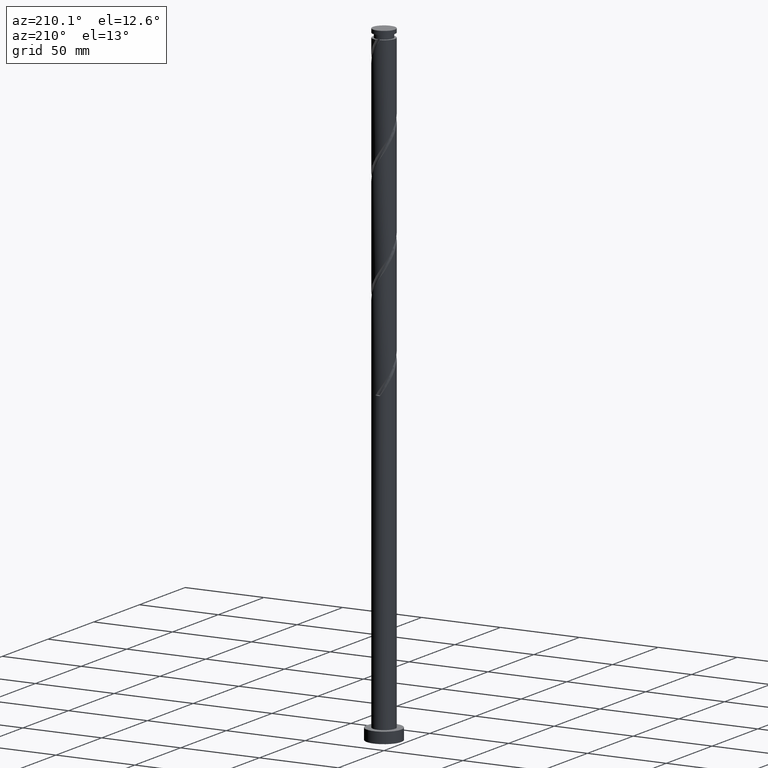
[diagram: clean part render]
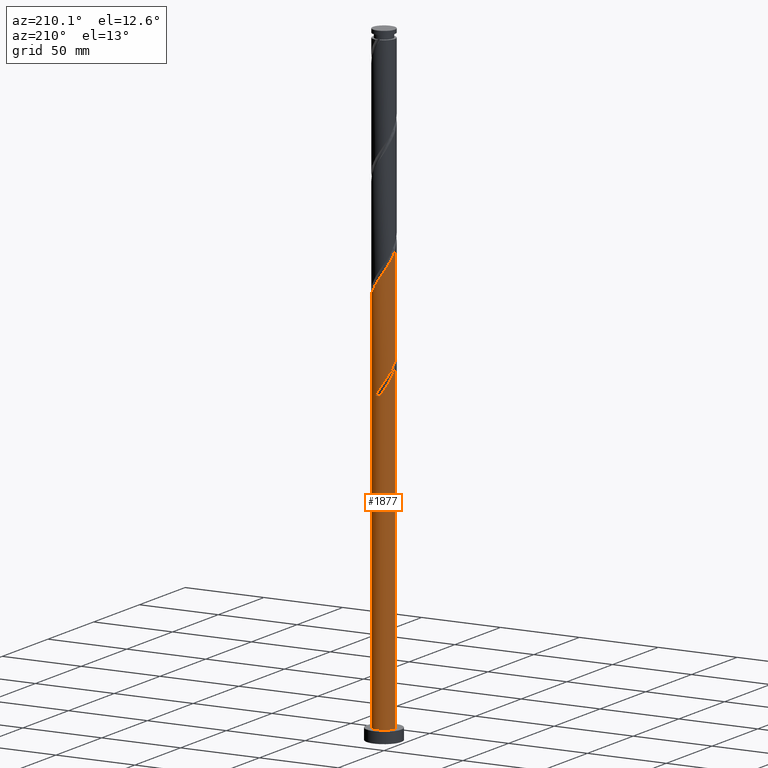
[diagram: same view with one face highlighted and labeled with its STEP entity id]
A machine part, auxiliary view. The second image highlights one B-rep face of the part: STEP entity #1877.
In plain terms, the highlighted cylindrical surface (edge-blend (fillet) strip) has radius 7 mm, axis along (-0, -0, -1).
Its self-contained STEP definition (entity closure, byte-faithful):
#21 = DIRECTION ( 'NONE',  ( -0.000000000000000000, -0.000000000000000000, -1.000000000000000000 ) ) ;
#100 = CARTESIAN_POINT ( 'NONE',  ( -6.030060668729773532, 3.555048288200651108, 203.6551182665601516 ) ) ;
#110 = CARTESIAN_POINT ( 'NONE',  ( 0.06373179489726354952, 6.999709869581692168, 259.2106738221157229 ) ) ;
#120 = CARTESIAN_POINT ( 'NONE',  ( 3.574630488033866627, 6.063275928678099724, 253.6551182665601800 ) ) ;
#128 = CARTESIAN_POINT ( 'NONE',  ( 6.968026513106293507, 0.6682862505303511780, 243.6551182665601800 ) ) ;
#176 = EDGE_CURVE ( 'NONE', #1970, #1303, #280, .T. ) ;
#184 = CARTESIAN_POINT ( 'NONE',  ( -1.517660616487697567, 6.833498829528120488, 199.2106738221156945 ) ) ;
#225 = CARTESIAN_POINT ( 'NONE',  ( 7.000000000000000888, 8.572527594031474176E-16, 7.000000000000000000 ) ) ;
#240 = EDGE_CURVE ( 'NONE', #1842, #826, #785, .T. ) ;
#273 = CARTESIAN_POINT ( 'NONE',  ( -5.656410037065892737, 4.188833203393127924, 269.2106738221157798 ) ) ;
#280 = CIRCLE ( 'NONE', #912, 7.000000000000000888 ) ;
#282 = CARTESIAN_POINT ( 'NONE',  ( -6.954702939942492002, 0.7950515814432463912, 274.7662293776712659 ) ) ;
#289 = CARTESIAN_POINT ( 'NONE',  ( -2.113997465871814363, 6.713591648853544314, 262.5440071554490373 ) ) ;
#300 = EDGE_CURVE ( 'NONE', #1970, #604, #440, .T. ) ;
#325 = CARTESIAN_POINT ( 'NONE',  ( -6.093792463627023537, 3.444661581381034843, 208.0995627110046371 ) ) ;
#363 = EDGE_LOOP ( 'NONE', ( #847, #543, #1133, #1956, #1321, #871, #641, #1604 ) ) ;
#378 = FACE_OUTER_BOUND ( 'NONE', #363, .T. ) ;
#398 = CARTESIAN_POINT ( 'NONE',  ( 7.000000000000000888, 8.572527594031474176E-16, 400.0000000000000000 ) ) ;
#404 = CARTESIAN_POINT ( 'NONE',  ( -4.661896512651583002, 5.273330922538002064, 266.9884515998934944 ) ) ;
#410 = CARTESIAN_POINT ( 'NONE',  ( 2.235890285154152668, 6.673986271039353824, 255.8773404887823517 ) ) ;
#422 = CARTESIAN_POINT ( 'NONE',  ( -4.062766126512286746, 5.700344849328372376, 199.2106738221156945 ) ) ;
#432 = CARTESIAN_POINT ( 'NONE',  ( -5.159153274858738314, 4.731082062965566770, 268.0995627110045234 ) ) ;
#440 =( BOUNDED_CURVE ( )  B_SPLINE_CURVE ( 2, ( #1472, #571, #560, #1319, #422, #1177, #593, #1198, #100, #441, #1800, #1824, #1047, #1495, #1031 ),
 .UNSPECIFIED., .F., .T. ) 
 B_SPLINE_CURVE_WITH_KNOTS ( ( 3, 2, 2, 2, 2, 2, 2, 3 ),
 ( 0.000000000000000000, 0.008333333333333303727, 0.01666666666666671848, 0.02500000000000002220, 0.03333333333333332593, 0.04166666666666662966, 0.05000000000000004441, 0.05452860127731151002 ),
 .UNSPECIFIED. ) 
 CURVE ( )  GEOMETRIC_REPRESENTATION_ITEM ( )  RATIONAL_B_SPLINE_CURVE ( ( 0.9090909090909347068, 0.9041108139711830916, 0.9090909090909347068, 0.9041108139711830916, 0.9090909090909347068, 0.9041108139711830916, 0.9090909090909347068, 0.9041108139711830916, 0.9090909090909347068, 0.9041108139711830916, 0.9090909090909347068, 0.9041108139711830916, 0.9090909090909347068, 0.9063845652764819238, 0.9066196499552231503 ) ) 
 REPRESENTATION_ITEM ( '' )  );
#441 = CARTESIAN_POINT ( 'NONE',  ( -6.403711300393656991, 2.921263373008176067, 204.7662293776712659 ) ) ;
#449 = EDGE_CURVE ( 'NONE', #604, #1645, #1869, .T. ) ;
#453 = AXIS2_PLACEMENT_3D ( 'NONE', #1741, #1565, #1907 ) ;
#475 = CARTESIAN_POINT ( 'NONE',  ( 1.392982411949274191, 6.859999999999999432, 194.7662293776712374 ) ) ;
#508 = LINE ( 'NONE', #1297, #2014 ) ;
#519 = CARTESIAN_POINT ( 'NONE',  ( -0.7994309478212489051, 6.993011388016896035, 198.0995627110045803 ) ) ;
#543 = ORIENTED_EDGE ( 'NONE', *, *, #829, .T. ) ;
#560 = CARTESIAN_POINT ( 'NONE',  ( -2.788816603122402871, 6.420475212486143946, 196.9884515998935228 ) ) ;
#571 = CARTESIAN_POINT ( 'NONE',  ( -2.113997465871814363, 6.713591648853544314, 195.8773404887823233 ) ) ;
#572 = EDGE_CURVE ( 'NONE', #1003, #1303, #1107, .T. ) ;
#584 = CARTESIAN_POINT ( 'NONE',  ( -6.637425475935894603, 2.223641844227014719, 272.5440071554490942 ) ) ;
#593 = CARTESIAN_POINT ( 'NONE',  ( -5.159153274858738314, 4.731082062965566770, 201.4328960443379231 ) ) ;
#604 = VERTEX_POINT ( 'NONE', #941 ) ;
#633 = DIRECTION ( 'NONE',  ( 0.000000000000000000, 0.000000000000000000, 1.000000000000000000 ) ) ;
#638 = CARTESIAN_POINT ( 'NONE',  ( 1.392982411949274191, 6.859999999999999432, 194.7662293776712374 ) ) ;
#641 = ORIENTED_EDGE ( 'NONE', *, *, #572, .F. ) ;
#650 = CARTESIAN_POINT ( 'NONE',  ( -6.968026513106281961, 0.6682862505303576173, 212.5440071554490089 ) ) ;
#726 = CARTESIAN_POINT ( 'NONE',  ( -4.062766126512286746, 5.700344849328372376, 265.8773404887823517 ) ) ;
#780 = CARTESIAN_POINT ( 'NONE',  ( 0.6719673580267319091, 7.006408351146465208, 195.8773404887823517 ) ) ;
#785 =( BOUNDED_CURVE ( )  B_SPLINE_CURVE ( 2, ( #954, #1577, #128, #1161, #1485, #1812, #868, #1169, #1978, #1660, #1653, #120, #1789, #410, #1328, #1189, #110, #1039, #1966, #289, #1512, #1342, #726, #404, #432, #273, #1020, #1503, #584, #1780, #282, #875, #1642 ),
 .UNSPECIFIED., .F., .T. ) 
 B_SPLINE_CURVE_WITH_KNOTS ( ( 3, 2, 2, 2, 2, 2, 2, 2, 2, 2, 2, 2, 2, 2, 2, 2, 3 ),
 ( 0.1795286012773115725, 0.1833333333333333481, 0.1916666666666666519, 0.1999999999999999556, 0.2083333333333333703, 0.2166666666666666741, 0.2249999999999999778, 0.2333333333333332815, 0.2416666666666666963, 0.2500000000000000000, 0.2583333333333333037, 0.2666666666666667185, 0.2750000000000000222, 0.2833333333333333259, 0.2916666666666666297, 0.3000000000000000444, 0.3045286012773112949 ),
 .UNSPECIFIED. ) 
 CURVE ( )  GEOMETRIC_REPRESENTATION_ITEM ( )  RATIONAL_B_SPLINE_CURVE ( ( 0.9066196499552231503, 0.9068171577856358745, 0.9090909090909347068, 0.9041108139711830916, 0.9090909090909347068, 0.9041108139711830916, 0.9090909090909347068, 0.9041108139711830916, 0.9090909090909347068, 0.9041108139711830916, 0.9090909090909347068, 0.9041108139711830916, 0.9090909090909347068, 0.9041108139711830916, 0.9090909090909347068, 0.9041108139711830916, 0.9090909090909347068, 0.9041108139711830916, 0.9090909090909347068, 0.9041108139711830916, 0.9090909090909347068, 0.9041108139711830916, 0.9090909090909347068, 0.9041108139711830916, 0.9090909090909347068, 0.9041108139711830916, 0.9090909090909347068, 0.9041108139711830916, 0.9090909090909347068, 0.9041108139711830916, 0.9090909090909347068, 0.9063845652764820349, 0.9066196499552230392 ) ) 
 REPRESENTATION_ITEM ( '' )  );
#818 = CARTESIAN_POINT ( 'NONE',  ( -3.574630488033854636, 6.063275928678096172, 202.5440071554490657 ) ) ;
#826 = VERTEX_POINT ( 'NONE', #1027 ) ;
#829 = EDGE_CURVE ( 'NONE', #1842, #994, #1333, .T. ) ;
#847 = ORIENTED_EDGE ( 'NONE', *, *, #240, .F. ) ;
#868 = CARTESIAN_POINT ( 'NONE',  ( 6.093792463627035083, 3.444661581381037951, 248.0995627110045803 ) ) ;
#871 = ORIENTED_EDGE ( 'NONE', *, *, #176, .T. ) ;
#875 = CARTESIAN_POINT ( 'NONE',  ( -7.000000000000008882, 0.3988161621250456701, 275.3685281580984565 ) ) ;
#912 = AXIS2_PLACEMENT_3D ( 'NONE', #1762, #990, #1149 ) ;
#931 = CARTESIAN_POINT ( 'NONE',  ( -6.897786797805721903, 1.400655348501351094, 211.4328960443379515 ) ) ;
#941 = CARTESIAN_POINT ( 'NONE',  ( -7.000000000000010658, -6.158747153314091299E-15, 209.3074528008164350 ) ) ;
#951 = CARTESIAN_POINT ( 'NONE',  ( -6.676813891346427887, 2.102416766562563488, 210.3217849332268088 ) ) ;
#954 = CARTESIAN_POINT ( 'NONE',  ( 7.000000000000012434, 3.737103855166317141E-15, 242.6407861341498062 ) ) ;
#961 = CARTESIAN_POINT ( 'NONE',  ( -6.455840984887133871, 2.804178184623774772, 209.2106738221157229 ) ) ;
#990 = DIRECTION ( 'NONE',  ( 0.000000000000000000, -2.973811673103096343E-14, -1.000000000000000000 ) ) ;
#994 = VERTEX_POINT ( 'NONE', #225 ) ;
#1003 = VERTEX_POINT ( 'NONE', #1449 ) ;
#1020 = CARTESIAN_POINT ( 'NONE',  ( -6.030060668729773532, 3.555048288200651108, 270.3217849332268656 ) ) ;
#1027 = CARTESIAN_POINT ( 'NONE',  ( -7.000000000000010658, -6.158747153314091299E-15, 275.9741194674830922 ) ) ;
#1031 = CARTESIAN_POINT ( 'NONE',  ( -7.000000000000010658, -6.158747153314091299E-15, 209.3074528008164350 ) ) ;
#1039 = CARTESIAN_POINT ( 'NONE',  ( -0.6719673580267262469, 7.006408351146477642, 260.3217849332268088 ) ) ;
#1047 = CARTESIAN_POINT ( 'NONE',  ( -6.954702939942492002, 0.7950515814432463912, 208.0995627110046655 ) ) ;
#1058 = EDGE_CURVE ( 'NONE', #826, #1003, #508, .T. ) ;
#1062 = CARTESIAN_POINT ( 'NONE',  ( 0.000000000000000000, 0.000000000000000000, 7.000000000000000000 ) ) ;
#1092 = CARTESIAN_POINT ( 'NONE',  ( -4.757142185606312523, 5.187571333407684726, 204.7662293776712659 ) ) ;
#1100 = CARTESIAN_POINT ( 'NONE',  ( -7.000000000000002665, 9.178327068288536215E-15, 213.5583392878594111 ) ) ;
#1107 =( BOUNDED_CURVE ( )  B_SPLINE_CURVE ( 2, ( #1100, #1127, #650, #931, #951, #961, #325, #1551, #1584, #1092, #1396, #818, #1276, #1904, #184, #519, #1711, #780, #638 ),
 .UNSPECIFIED., .F., .T. ) 
 B_SPLINE_CURVE_WITH_KNOTS ( ( 3, 2, 2, 2, 2, 2, 2, 2, 2, 3 ),
 ( 0.9295286012773115170, 0.9333333333333333481, 0.9416666666666666519, 0.9499999999999999556, 0.9583333333333333703, 0.9666666666666666741, 0.9749999999999999778, 0.9833333333333332815, 0.9916666666666666963, 1.000000000000000000 ),
 .UNSPECIFIED. ) 
 CURVE ( )  GEOMETRIC_REPRESENTATION_ITEM ( )  RATIONAL_B_SPLINE_CURVE ( ( 0.9066196499552172661, 0.9068171577856299903, 0.9090909090909288226, 0.9041108139711772074, 0.9090909090909288226, 0.9041108139711772074, 0.9090909090909288226, 0.9041108139711772074, 0.9090909090909288226, 0.9041108139711772074, 0.9090909090909288226, 0.9041108139711772074, 0.9090909090909288226, 0.9041108139711772074, 0.9090909090909288226, 0.9041108139711772074, 0.9090909090909288226, 0.9041108139711772074, 0.9090909090909288226 ) ) 
 REPRESENTATION_ITEM ( '' )  );
#1116 = CYLINDRICAL_SURFACE ( 'NONE', #453, 7.000000000000000888 ) ;
#1127 = CARTESIAN_POINT ( 'NONE',  ( -6.999999999999999112, 0.3349079950072524348, 213.0497907622953164 ) ) ;
#1133 = ORIENTED_EDGE ( 'NONE', *, *, #1779, .T. ) ;
#1149 = DIRECTION ( 'NONE',  ( 0.000000000000000000, 1.000000000000000000, -2.775557561562891036E-14 ) ) ;
#1161 = CARTESIAN_POINT ( 'NONE',  ( 6.897786797805730785, 1.400655348501350206, 244.7662293776712943 ) ) ;
#1169 = CARTESIAN_POINT ( 'NONE',  ( 5.731743942366926525, 4.085144978138296246, 249.2106738221156945 ) ) ;
#1177 = CARTESIAN_POINT ( 'NONE',  ( -4.661896512651583002, 5.273330922538002064, 200.3217849332268656 ) ) ;
#1189 = CARTESIAN_POINT ( 'NONE',  ( 0.7994309478212532349, 6.993011388016906693, 258.0995627110045803 ) ) ;
#1198 = CARTESIAN_POINT ( 'NONE',  ( -5.656410037065892737, 4.188833203393127924, 202.5440071554490373 ) ) ;
#1240 = DIRECTION ( 'NONE',  ( 1.000000000000000000, 0.000000000000000000, 0.000000000000000000 ) ) ;
#1275 = DIRECTION ( 'NONE',  ( -0.000000000000000000, -0.000000000000000000, -1.000000000000000000 ) ) ;
#1276 = CARTESIAN_POINT ( 'NONE',  ( -2.905260386594000099, 6.368631099858720113, 201.4328960443379231 ) ) ;
#1297 = CARTESIAN_POINT ( 'NONE',  ( -7.000000000000000888, 0.000000000000000000, 400.0000000000000000 ) ) ;
#1303 = VERTEX_POINT ( 'NONE', #475 ) ;
#1313 = VECTOR ( 'NONE', #1648, 1000.000000000000000 ) ;
#1319 = CARTESIAN_POINT ( 'NONE',  ( -3.463635740372990046, 6.127358776118742689, 198.0995627110046371 ) ) ;
#1321 = ORIENTED_EDGE ( 'NONE', *, *, #300, .F. ) ;
#1328 = CARTESIAN_POINT ( 'NONE',  ( 1.517660616487705783, 6.833498829528128482, 256.9884515998935512 ) ) ;
#1333 = LINE ( 'NONE', #398, #1313 ) ;
#1341 = CARTESIAN_POINT ( 'NONE',  ( -1.392982411949271748, 6.860000000000010090, 194.7662293776712374 ) ) ;
#1342 = CARTESIAN_POINT ( 'NONE',  ( -3.463635740372990046, 6.127358776118742689, 264.7662293776712659 ) ) ;
#1396 = CARTESIAN_POINT ( 'NONE',  ( -4.165886336820082470, 5.625423631042889561, 203.6551182665601800 ) ) ;
#1449 = CARTESIAN_POINT ( 'NONE',  ( -7.000000000000002665, 9.178327068288536215E-15, 213.5583392878593827 ) ) ;
#1472 = CARTESIAN_POINT ( 'NONE',  ( -1.392982411949271748, 6.860000000000010090, 194.7662293776712374 ) ) ;
#1485 = CARTESIAN_POINT ( 'NONE',  ( 6.676813891346439434, 2.102416766562560380, 245.8773404887824370 ) ) ;
#1494 = CARTESIAN_POINT ( 'NONE',  ( -7.000000000000000888, 0.000000000000000000, 7.000000000000000000 ) ) ;
#1495 = CARTESIAN_POINT ( 'NONE',  ( -7.000000000000012434, 0.3988161621250262412, 208.7018614914319699 ) ) ;
#1503 = CARTESIAN_POINT ( 'NONE',  ( -6.403711300393656991, 2.921263373008176067, 271.4328960443378946 ) ) ;
#1512 = CARTESIAN_POINT ( 'NONE',  ( -2.788816603122402871, 6.420475212486143946, 263.6551182665601800 ) ) ;
#1537 = CIRCLE ( 'NONE', #1803, 7.000000000000000888 ) ;
#1551 = CARTESIAN_POINT ( 'NONE',  ( -5.731743942366914091, 4.085144978138296246, 206.9884515998934660 ) ) ;
#1565 = DIRECTION ( 'NONE',  ( -0.000000000000000000, -0.000000000000000000, -1.000000000000000000 ) ) ;
#1577 = CARTESIAN_POINT ( 'NONE',  ( 7.000000000000011546, 0.3349079950072513245, 243.1493346597138441 ) ) ;
#1584 = CARTESIAN_POINT ( 'NONE',  ( -5.244443063986611975, 4.636358155772989598, 205.8773404887824086 ) ) ;
#1604 = ORIENTED_EDGE ( 'NONE', *, *, #1058, .F. ) ;
#1642 = CARTESIAN_POINT ( 'NONE',  ( -7.000000000000010658, -6.158747153314091299E-15, 275.9741194674830922 ) ) ;
#1645 = VERTEX_POINT ( 'NONE', #1494 ) ;
#1648 = DIRECTION ( 'NONE',  ( -0.000000000000000000, -0.000000000000000000, -1.000000000000000000 ) ) ;
#1653 = CARTESIAN_POINT ( 'NONE',  ( 4.165886336820090463, 5.625423631042894002, 252.5440071554490089 ) ) ;
#1660 = CARTESIAN_POINT ( 'NONE',  ( 4.757142185606320517, 5.187571333407690055, 251.4328960443380083 ) ) ;
#1703 = CARTESIAN_POINT ( 'NONE',  ( -7.000000000000000888, 0.000000000000000000, 400.0000000000000000 ) ) ;
#1711 = CARTESIAN_POINT ( 'NONE',  ( -0.06373179489725845637, 6.999709869581681509, 196.9884515998935228 ) ) ;
#1741 = CARTESIAN_POINT ( 'NONE',  ( 0.000000000000000000, 0.000000000000000000, 400.0000000000000000 ) ) ;
#1762 = CARTESIAN_POINT ( 'NONE',  ( 0.000000000000000000, 0.000000000000000000, 194.7662293776714648 ) ) ;
#1779 = EDGE_CURVE ( 'NONE', #994, #1645, #1537, .T. ) ;
#1780 = CARTESIAN_POINT ( 'NONE',  ( -6.871139651478133992, 1.526020315445854703, 273.6551182665601232 ) ) ;
#1789 = CARTESIAN_POINT ( 'NONE',  ( 2.905260386594007205, 6.368631099858728994, 254.7662293776712943 ) ) ;
#1800 = CARTESIAN_POINT ( 'NONE',  ( -6.637425475935894603, 2.223641844227014719, 205.8773404887824370 ) ) ;
#1803 = AXIS2_PLACEMENT_3D ( 'NONE', #1062, #633, #1240 ) ;
#1812 = CARTESIAN_POINT ( 'NONE',  ( 6.455840984887146305, 2.804178184623772108, 246.9884515998934660 ) ) ;
#1824 = CARTESIAN_POINT ( 'NONE',  ( -6.871139651478133992, 1.526020315445854703, 206.9884515998934660 ) ) ;
#1842 = VERTEX_POINT ( 'NONE', #1918 ) ;
#1869 = LINE ( 'NONE', #1703, #1887 ) ;
#1877 = ADVANCED_FACE ( 'NONE', ( #378 ), #1116, .T. ) ;
#1887 = VECTOR ( 'NONE', #21, 1000.000000000000000 ) ;
#1904 = CARTESIAN_POINT ( 'NONE',  ( -2.235890285154146451, 6.673986271039347606, 200.3217849332268088 ) ) ;
#1907 = DIRECTION ( 'NONE',  ( -1.000000000000000000, 0.000000000000000000, 0.000000000000000000 ) ) ;
#1918 = CARTESIAN_POINT ( 'NONE',  ( 7.000000000000012434, 3.737103855166317141E-15, 242.6407861341498062 ) ) ;
#1956 = ORIENTED_EDGE ( 'NONE', *, *, #449, .F. ) ;
#1966 = CARTESIAN_POINT ( 'NONE',  ( -1.392982411949271748, 6.860000000000010090, 261.4328960443379515 ) ) ;
#1970 = VERTEX_POINT ( 'NONE', #1341 ) ;
#1978 = CARTESIAN_POINT ( 'NONE',  ( 5.244443063986624409, 4.636358155772991374, 250.3217849332268372 ) ) ;
#2014 = VECTOR ( 'NONE', #1275, 1000.000000000000000 ) ;